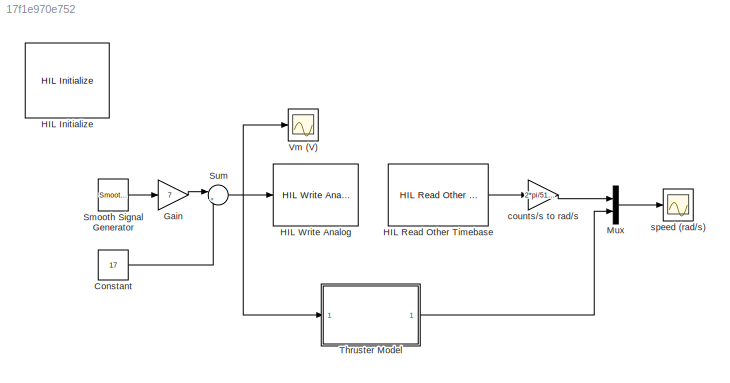
MODEL slx_17f1e970e752
KIND model
CONFIG AbsTol = auto
CONFIG EnableMultiTasking = on
CONFIG FixedStep = 0.002
CONFIG MaxStep = auto
CONFIG MinStep = auto
CONFIG RelTol = 1e-3
CONFIG SampleTimeConstraint = Unconstrained
CONFIG SolverName = FixedStepAuto
CONFIG StartTime = 0.0
CONFIG StopTime = inf
BLOCK [Constant] Constant
  Value = 17
BLOCK [Gain] Gain
  Gain = 7
BLOCK [Reference] HIL Initialize  REF=quarc_library/Data Acquisition/Generic/Configuration/HIL Initialize
  AttributesFormatString = %<object_name> (%<board_type>-%<board_number>)
  Ports = []
  Priority = -99
  SourceBlock = quarc_library/Data Acquisition/Generic/Configuration/HIL Initialize
  SourceProductName = QUARC Targets
  SourceType = HIL Initialize
  UserDataPersistent = on
BLOCK [Reference] HIL Read Other Timebase  REF=quarc_library/Data Acquisition/Generic/Timebases/HIL Read Other
Timebase
  AttributesFormatString = (%<object_name>)
  Ports = [0, 1]
  SourceBlock = quarc_library/Data Acquisition/Generic/Timebases/HIL Read Other\nTimebase
  SourceProductName = QUARC Targets
  SourceType = HIL Read Other Timebase
  UserDataPersistent = on
BLOCK [Reference] HIL Write Analog  REF=quarc_library/Data Acquisition/Generic/Immediate I//O/HIL Write Analog
  AttributesFormatString = (%<object_name>)
  Ports = [1]
  SourceBlock = quarc_library/Data Acquisition/Generic/Immediate I//O/HIL Write Analog
  SourceProductName = QUARC Targets
  SourceType = HIL Write Analog
  UserDataPersistent = on
BLOCK [Mux] Mux
  DisplayOption = bar
  Inputs = 2
  Ports = [2, 1]
BLOCK [Reference] Smooth Signal Generator  REF=quarc_library/Sources/Signals/Smooth Signal
Generator
  Ports = [0, 1]
  SourceBlock = quarc_library/Sources/Signals/Smooth Signal\nGenerator
  SourceProductName = QUARC Targets
  SourceType = Smooth Signal Generator
BLOCK [Sum] Sum
  Inputs = |++
  Ports = [2, 1]
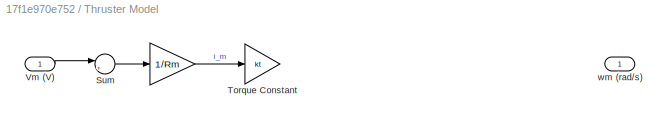
BLOCK [SubSystem] Thruster Model
  Ports = [1, 1]
  RequestExecContextInheritance = off
BLOCK [Gain] Thruster Model/  
  Gain = 1/Rm
  NameLocation = right
  OutDataTypeStr = Inherit: Same as input
  ParamDataTypeStr = Inherit: Same as input
  SaturateOnIntegerOverflow = on
BLOCK [Sum] Thruster Model/Sum
  InputSameDT = on
  Inputs = |+-
  OutDataTypeStr = Inherit: Same as first input
  Ports = [2, 1]
  SaturateOnIntegerOverflow = on
BLOCK [Gain] Thruster Model/Torque Constant
  Gain = kt
BLOCK [Inport] Thruster Model/Vm (V)
BLOCK [Outport] Thruster Model/wm (rad//s)
BLOCK [Scope] Vm (V)
  Floating = off
  NumInputPorts = 1
  Ports = [1]
  ScopeSpecificationString = Simulink.scopes.TimeScopeBlockCfg('CurrentConfiguration', extmgr.ConfigurationSet(extmgr.Configuration('Core','General UI',true),extmgr.Configuration('Core','Source UI',true),extmgr.Configuration('Sources','WiredSimulink',true,'DataLogging',true,'DataLoggingVariableName','data_Vm','DataLoggingMaxPoints','2500','DataLoggingLimitDataPoints',true,'DataLoggingSaveFormat','Array','DataLoggingDecimation...<+1776ch>
BLOCK [Gain] counts//s to rad//s
  Gain = 2*pi/512/4
BLOCK [Scope] speed (rad//s)
  Floating = off
  NumInputPorts = 1
  Ports = [1]
  ScopeSpecificationString = Simulink.scopes.TimeScopeBlockCfg('CurrentConfiguration', extmgr.ConfigurationSet(extmgr.Configuration('Core','General UI',true),extmgr.Configuration('Core','Source UI',true),extmgr.Configuration('Sources','WiredSimulink',true,'DataLogging',true,'DataLoggingVariableName','data_spd','DataLoggingMaxPoints','2500','DataLoggingLimitDataPoints',true,'DataLoggingSaveFormat','Array','DataLoggingDecimatio...<+1796ch>
LINE Constant:1 -> Sum:2
LINE Gain:1 -> Sum:1
LINE HIL Read Other Timebase:1 -> counts//s to rad//s:1
LINE Mux:1 -> speed (rad//s):1
LINE Smooth Signal Generator:1 -> Gain:1
NET Sum:1 -> HIL Write Analog:1, Thruster Model:1, Vm (V):1
LINE Thruster Model/  :1 -> Thruster Model/Torque Constant:1
LINE Thruster Model/Sum:1 -> Thruster Model/  :1
LINE Thruster Model/Vm (V):1 -> Thruster Model/Sum:1
LINE Thruster Model:1 -> Mux:2
LINE counts//s to rad//s:1 -> Mux:1
note: NET lines group one-source signal fan-out (src -> all destinations, sorted); 1:1 wires keep LINE
